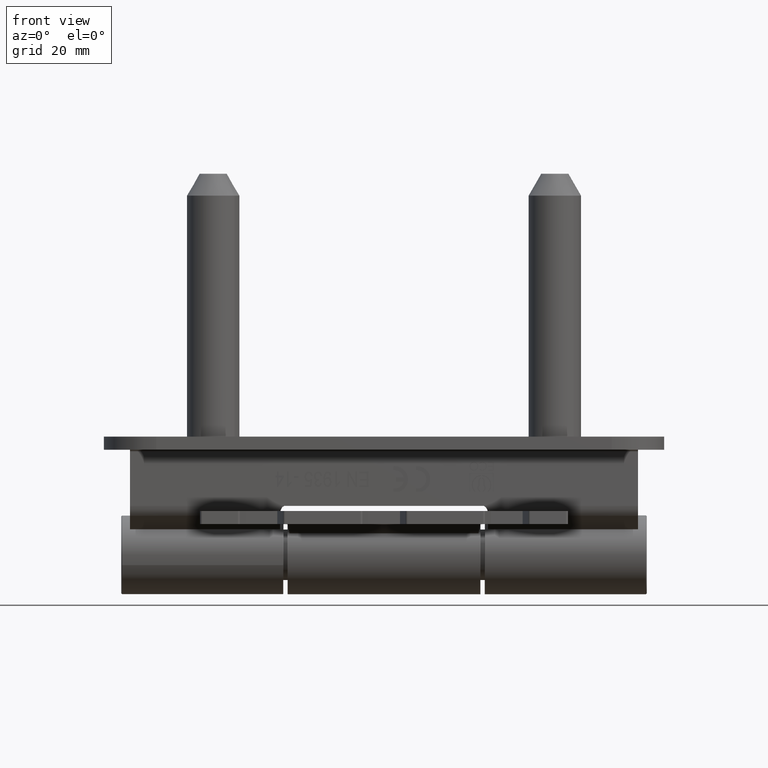
[diagram: clean part render]
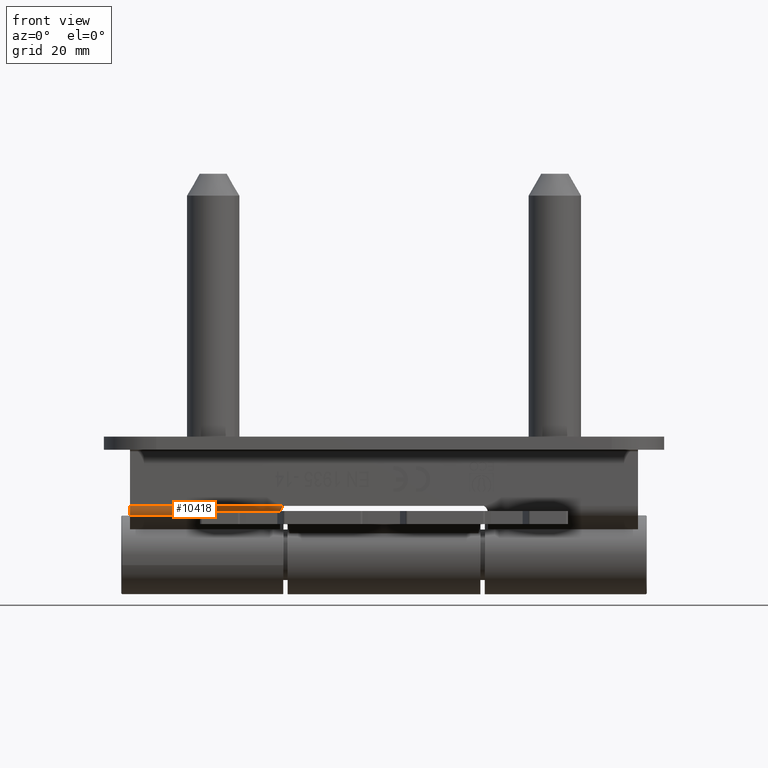
[diagram: same view with one face highlighted and labeled with its STEP entity id]
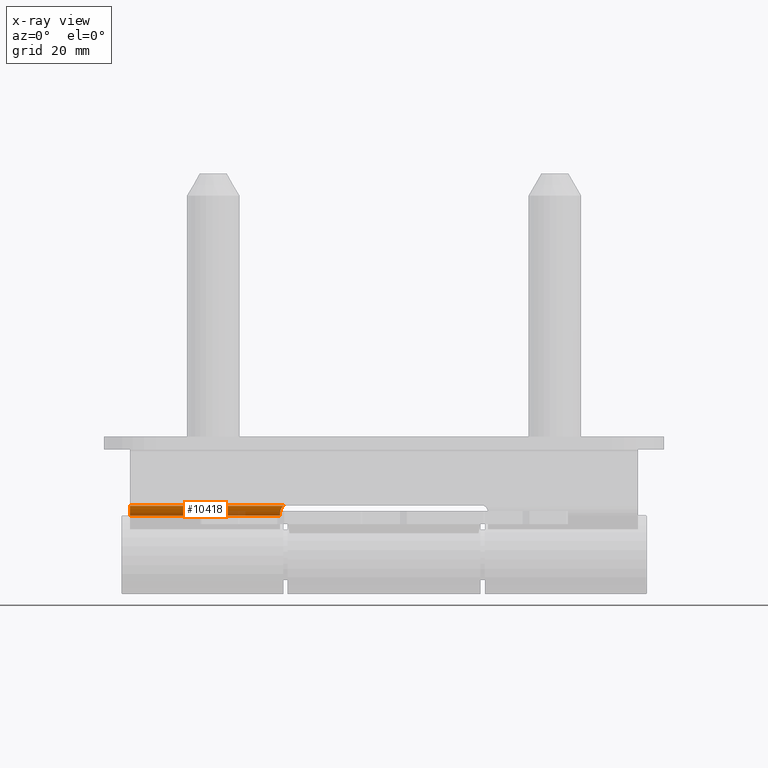
[diagram: x-ray of the same camera — body ghosted, the highlighted face saturated]
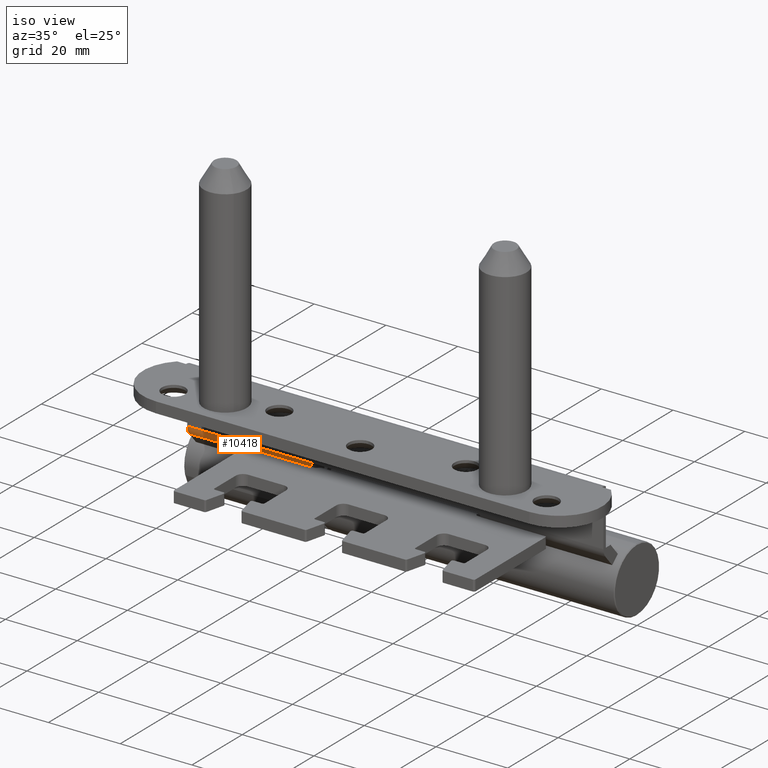
[diagram: same view with one face highlighted and labeled with its STEP entity id]
A machine part, front view. The second image highlights one B-rep face of the part: STEP entity #10418.
The next image is the same camera in x-ray: the body ghosted, the highlighted face saturated — about 14% of this face is hidden behind the body in this view.
A second angle (iso view) of the same face is appended — the face is thin or edge-on in the first view.
In plain terms, the highlighted cylindrical surface (edge-blend (fillet) strip) has radius 3.5 mm, axis along (-1, 0, 0).
Its self-contained STEP definition (entity closure, byte-faithful):
#146 = ORIENTED_EDGE ( 'NONE', *, *, #16768, .F. ) ;
#643 = CARTESIAN_POINT ( 'NONE',  ( -21.00000000000002487, 22.74999999999999289, 15.81427028705640403 ) ) ;
#701 = EDGE_CURVE ( 'NONE', #11819, #11866, #1323, .T. ) ;
#1323 = CIRCLE ( 'NONE', #17030, 3.500000000000003109 ) ;
#1453 = CARTESIAN_POINT ( 'NONE',  ( -21.84876091746161464, 23.75000000000000000, 18.09920602515077803 ) ) ;
#1478 = LINE ( 'NONE', #3024, #8301 ) ;
#1753 = CIRCLE ( 'NONE', #12787, 3.500000000000003109 ) ;
#1967 = DIRECTION ( 'NONE',  ( 1.691311381637444535E-32, 1.000000000000000000, -7.703719777548943412E-33 ) ) ;
#2147 = CARTESIAN_POINT ( 'NONE',  ( -21.17927525149951151, 23.66512552478190656, 17.03612815800678604 ) ) ;
#2310 = CARTESIAN_POINT ( 'NONE',  ( -21.00000000000002132, 58.00000000000000711, 15.81427028705641114 ) ) ;
#2960 = CYLINDRICAL_SURFACE ( 'NONE', #14606, 3.500000000000003109 ) ;
#3024 = CARTESIAN_POINT ( 'NONE',  ( -21.00000000000001776, 64.00000000000000000, 15.81427028705640758 ) ) ;
#3470 = EDGE_CURVE ( 'NONE', #6836, #11866, #10938, .T. ) ;
#3841 = EDGE_LOOP ( 'NONE', ( #146, #16380, #7142, #12407, #8521 ) ) ;
#4124 = EDGE_CURVE ( 'NONE', #10957, #17016, #1478, .T. ) ;
#5942 = CARTESIAN_POINT ( 'NONE',  ( -21.08548048976346934, 23.53988560536436481, 16.63653907441149116 ) ) ;
#6836 = VERTEX_POINT ( 'NONE', #12613 ) ;
#7142 = ORIENTED_EDGE ( 'NONE', *, *, #7361, .F. ) ;
#7196 = DIRECTION ( 'NONE',  ( -1.691311381637444535E-32, -1.000000000000000000, 7.703719777548943412E-33 ) ) ;
#7361 = EDGE_CURVE ( 'NONE', #6836, #10957, #1753, .T. ) ;
#7682 = CARTESIAN_POINT ( 'NONE',  ( -21.42846103338372288, 23.75000000000000000, 17.49225967217114075 ) ) ;
#8301 = VECTOR ( 'NONE', #12760, 1000.000000000000000 ) ;
#8516 = CARTESIAN_POINT ( 'NONE',  ( -24.50000000000002132, 4.968977366993194700, 15.81427028705641469 ) ) ;
#8521 = ORIENTED_EDGE ( 'NONE', *, *, #701, .F. ) ;
#9053 = CARTESIAN_POINT ( 'NONE',  ( -21.00000000000001776, 22.99865945642081755, 15.87997048235709130 ) ) ;
#9640 = CARTESIAN_POINT ( 'NONE',  ( -21.84876091746161109, 64.00000000000000000, 18.09920602515078514 ) ) ;
#10162 = DIRECTION ( 'NONE',  ( 1.691311381637444535E-32, 1.000000000000000000, -7.703719777548943412E-33 ) ) ;
#10248 = CARTESIAN_POINT ( 'NONE',  ( -24.50000000000002132, 57.99999999999999289, 15.81427028705641114 ) ) ;
#10418 = ADVANCED_FACE ( 'NONE', ( #12603 ), #2960, .T. ) ;
#10938 = LINE ( 'NONE', #9640, #16123 ) ;
#10957 = VERTEX_POINT ( 'NONE', #2310 ) ;
#11819 = VERTEX_POINT ( 'NONE', #16656 ) ;
#11866 = VERTEX_POINT ( 'NONE', #1453 ) ;
#12193 = DIRECTION ( 'NONE',  ( -1.691311381637444535E-32, -1.000000000000000000, 7.703719777548943412E-33 ) ) ;
#12407 = ORIENTED_EDGE ( 'NONE', *, *, #3470, .T. ) ;
#12603 = FACE_OUTER_BOUND ( 'NONE', #3841, .T. ) ;
#12613 = CARTESIAN_POINT ( 'NONE',  ( -21.84876091746161819, 58.00000000000000000, 18.09920602515077803 ) ) ;
#12745 = CARTESIAN_POINT ( 'NONE',  ( -24.50000000000001776, 23.75000000000000355, 15.81427028705641114 ) ) ;
#12760 = DIRECTION ( 'NONE',  ( -1.691311381637444535E-32, -1.000000000000000000, 7.703719777548943412E-33 ) ) ;
#12787 = AXIS2_PLACEMENT_3D ( 'NONE', #10248, #10162, #15782 ) ;
#12882 = DIRECTION ( 'NONE',  ( 1.000000000000000000, 0.000000000000000000, 0.000000000000000000 ) ) ;
#14289 = DIRECTION ( 'NONE',  ( 1.000000000000000000, 0.000000000000000000, 1.982541115402063335E-15 ) ) ;
#14601 = CARTESIAN_POINT ( 'NONE',  ( -20.99647764923899373, 23.20655227203102910, 16.06003558599500991 ) ) ;
#14606 = AXIS2_PLACEMENT_3D ( 'NONE', #8516, #1967, #12882 ) ;
#15782 = DIRECTION ( 'NONE',  ( 1.000000000000000000, 0.000000000000000000, 0.000000000000000000 ) ) ;
#15968 = CARTESIAN_POINT ( 'NONE',  ( -21.00000000000002487, 22.74999999999999289, 15.81427028705640403 ) ) ;
#16123 = VECTOR ( 'NONE', #12193, 1000.000000000000000 ) ;
#16380 = ORIENTED_EDGE ( 'NONE', *, *, #4124, .F. ) ;
#16656 = CARTESIAN_POINT ( 'NONE',  ( -21.42846103338372288, 23.75000000000000000, 17.49225967217114075 ) ) ;
#16768 = EDGE_CURVE ( 'NONE', #17016, #11819, #17995, .T. ) ;
#17016 = VERTEX_POINT ( 'NONE', #643 ) ;
#17030 = AXIS2_PLACEMENT_3D ( 'NONE', #12745, #7196, #14289 ) ;
#17995 = B_SPLINE_CURVE_WITH_KNOTS ( 'NONE', 3,
 ( #15968, #9053, #14601, #5942, #2147, #7682 ),
 .UNSPECIFIED., .F., .F.,
 ( 4, 2, 4 ),
 ( 0.000000000000000000, 0.5000000000000000000, 1.000000000000000000 ),
 .UNSPECIFIED. ) ;